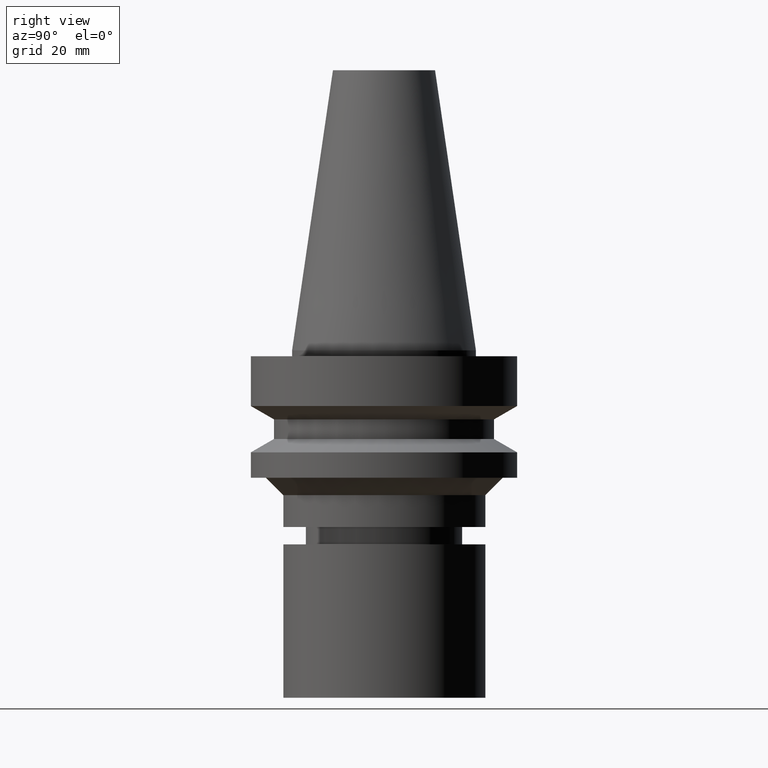
[diagram: clean part render]
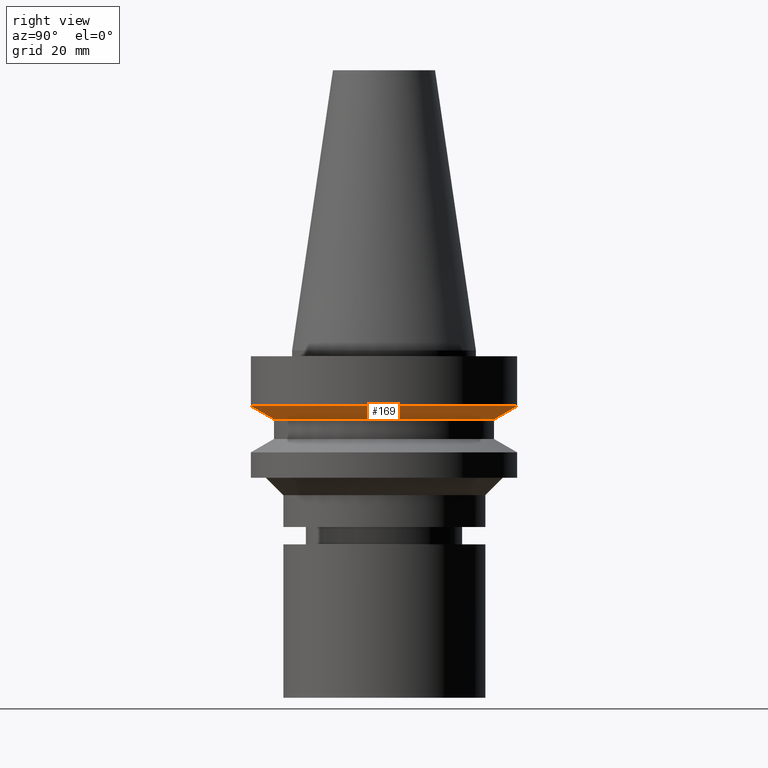
[diagram: same view with one face highlighted and labeled with its STEP entity id]
A machine part, right view. The second image highlights one B-rep face of the part: STEP entity #169.
In plain terms, the highlighted conical surface has half-angle 60 deg.
Its self-contained STEP definition (entity closure, byte-faithful):
#110=EDGE_CURVE('Unnamed[1]',#255,#255,#256,.T.);
#158=EDGE_CURVE('Unnamed[1]',#328,#328,#329,.T.);
#169=ADVANCED_FACE('Unnamed[1]',(#344,#345),#346,.T.);
#255=VERTEX_POINT('',#443);
#256=CIRCLE('',#444,19.0);
#328=VERTEX_POINT('',#535);
#329=CIRCLE('',#536,23.0);
#344=FACE_BOUND('',#555,.T.);
#345=FACE_BOUND('',#556,.T.);
#346=CONICAL_SURFACE('',#557,21.0,1.04719755058881);
#443=CARTESIAN_POINT('',(7.29240495619202E-016,19.0,-11.90940108));
#444=AXIS2_PLACEMENT_3D('',#640,#641,#642);
#535=CARTESIAN_POINT('',(5.87830463590729E-016,23.0,-9.59999999999999));
#536=AXIS2_PLACEMENT_3D('',#718,#719,#720);
#555=EDGE_LOOP('',(#736));
#556=EDGE_LOOP('',(#737));
#557=AXIS2_PLACEMENT_3D('',#738,#739,#740);
#640=CARTESIAN_POINT('',(7.29240495619202E-016,1.4584809912384E-015,-11.90940108));
#641=DIRECTION('',(6.12323399573677E-017,1.22464679914735E-016,-1.0));
#642=DIRECTION('',(-1.23259516440783E-032,1.0,1.22464679914735E-016));
#718=CARTESIAN_POINT('',(5.87830463590729E-016,1.17566092718146E-015,-9.59999999999999));
#719=DIRECTION('',(6.12323399573677E-017,1.22464679914735E-016,-1.0));
#720=DIRECTION('',(-1.23259516440783E-032,1.0,1.22464679914735E-016));
#736=ORIENTED_EDGE('',*,*,#110,.F.);
#737=ORIENTED_EDGE('',*,*,#158,.T.);
#738=CARTESIAN_POINT('',(6.58535479604966E-016,1.31707095920993E-015,-10.75470054));
#739=DIRECTION('',(-6.12323399573677E-017,-1.22464679914735E-016,1.0));
#740=DIRECTION('',(-1.23259516440783E-032,1.0,1.22464679914735E-016));